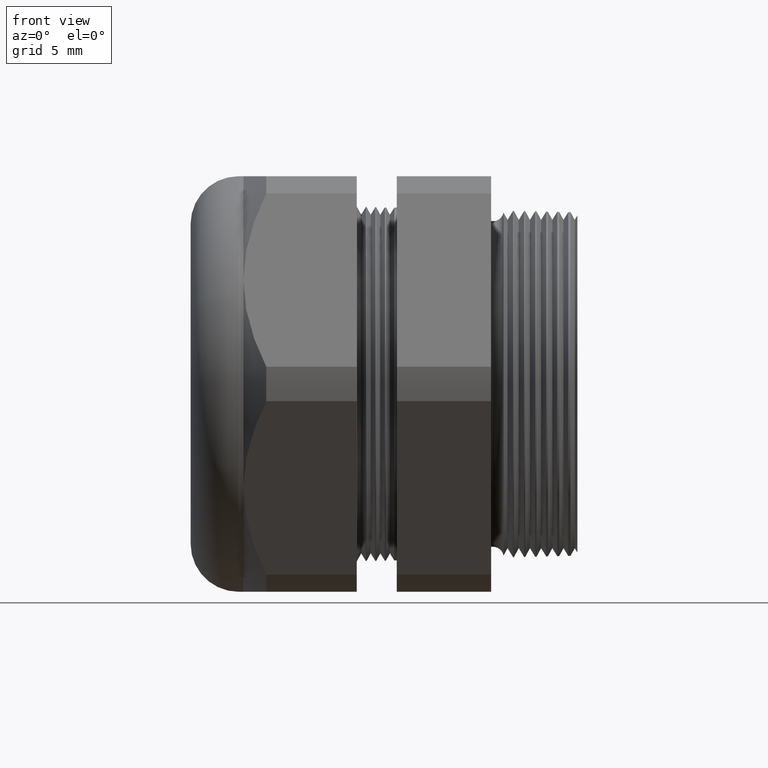
[diagram: clean part render]
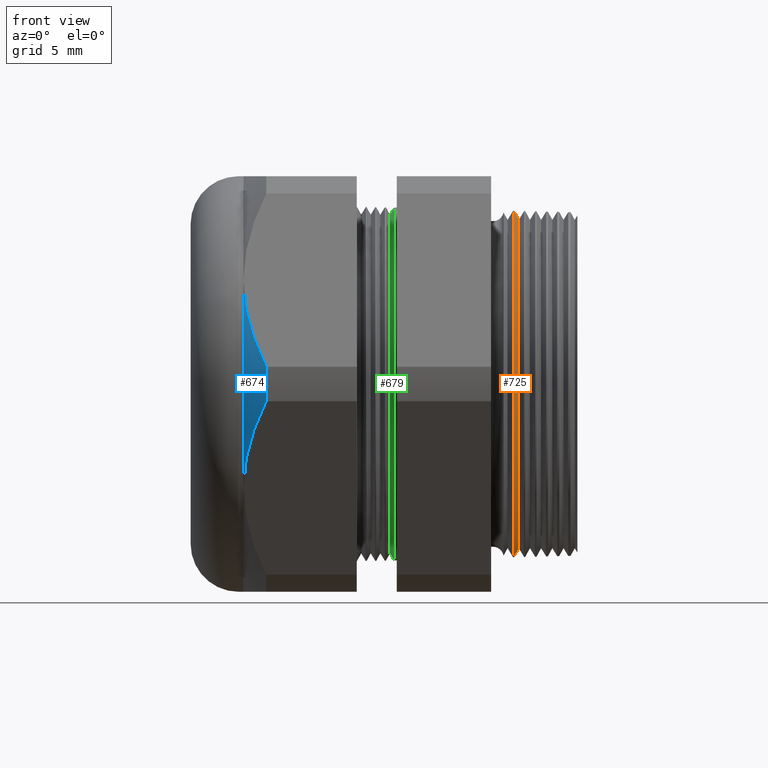
[diagram: same view with three faces highlighted in distinct colors, each labeled with its STEP entity id]
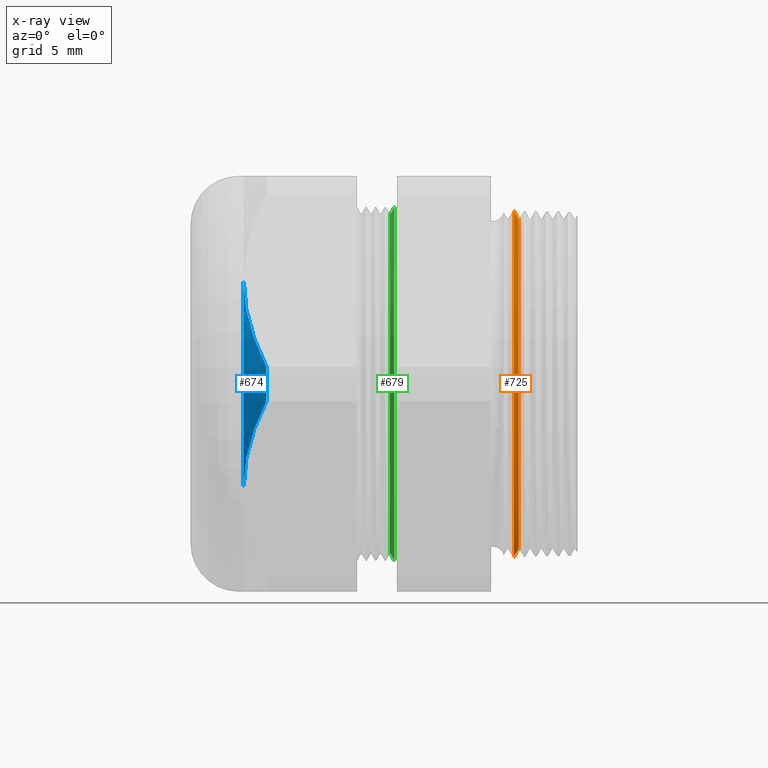
[diagram: x-ray of the same camera — body ghosted, the three highlighted faces saturated]
A machine part, front view with three faces highlighted in distinct colors.
The next image is the same camera in x-ray (body ghosted, the three faces saturated) — at least one of them is partly hidden behind the body in this view.
Their STEP definitions:

[orange] entity #725 — the highlighted conical surface has half-angle 61.5 deg.
#725 = ADVANCED_FACE ( 'NONE', ( #2220 ), #2217, .T. ) ;
#726 = EDGE_LOOP ( 'NONE', ( #727, #728, #730, #731 ) ) ;
#727 = ORIENTED_EDGE ( 'NONE', *, *, #866, .F. ) ;
#728 = ORIENTED_EDGE ( 'NONE', *, *, #729, .F. ) ;
#729 = EDGE_CURVE ( 'NONE', #818, #817, #2211, .T. ) ;
#730 = ORIENTED_EDGE ( 'NONE', *, *, #822, .T. ) ;
#731 = ORIENTED_EDGE ( 'NONE', *, *, #3519, .T. ) ;
#817 = VERTEX_POINT ( 'NONE', #2329 ) ;
#818 = VERTEX_POINT ( 'NONE', #2328 ) ;
#822 = EDGE_CURVE ( 'NONE', #818, #870, #2322, .T. ) ;
#866 = EDGE_CURVE ( 'NONE', #817, #867, #2415, .T. ) ;
#867 = VERTEX_POINT ( 'NONE', #2472 ) ;
#870 = VERTEX_POINT ( 'NONE', #2466 ) ;
#2208 = DIRECTION ( 'NONE',  ( 0.0000000000000000000, 0.0000000000000000000, -1.000000000000000000 ) ) ;
#2209 = DIRECTION ( 'NONE',  ( 1.000000000000000000, 0.0000000000000000000, 0.0000000000000000000 ) ) ;
#2210 = AXIS2_PLACEMENT_3D ( 'NONE', #2216, #2209, #2208 ) ;
#2211 = CIRCLE ( 'NONE', #2210, 0.5135505476127620900 ) ;
#2212 = DIRECTION ( 'NONE',  ( 0.0000000000000000000, 0.0000000000000000000, 1.000000000000000000 ) ) ;
#2213 = DIRECTION ( 'NONE',  ( -1.000000000000000000, 0.0000000000000000000, 0.0000000000000000000 ) ) ;
#2214 = CARTESIAN_POINT ( 'NONE',  ( -0.2399999999999999600, 0.0000000000000000000, 0.0000000000000000000 ) ) ;
#2215 = AXIS2_PLACEMENT_3D ( 'NONE', #2214, #2213, #2212 ) ;
#2216 = CARTESIAN_POINT ( 'NONE',  ( -0.2234707356790751900, 0.0000000000000000000, 0.0000000000000000000 ) ) ;
#2217 = CONICAL_SURFACE ( 'NONE', #2215, 0.5439936654065921100, 1.073377489976501000 ) ;
#2220 = FACE_OUTER_BOUND ( 'NONE', #726, .T. ) ;
#2319 = DIRECTION ( 'NONE',  ( -0.4771587602596187900, 0.0000000000000000000, 0.8788171126619597200 ) ) ;
#2320 = VECTOR ( 'NONE', #2319, 39.37007874015748900 ) ;
#2321 = CARTESIAN_POINT ( 'NONE',  ( -0.2399999999999999600, 0.0000000000000000000, 0.5439936654065921100 ) ) ;
#2322 = LINE ( 'NONE', #2321, #2320 ) ;
#2328 = CARTESIAN_POINT ( 'NONE',  ( -0.2234707356790751900, 0.0000000000000000000, 0.5135505476127620900 ) ) ;
#2329 = CARTESIAN_POINT ( 'NONE',  ( -0.2234707356790751900, 6.464204818586249500E-017, -0.5135505476127620900 ) ) ;
#2412 = DIRECTION ( 'NONE',  ( -0.4771587602596187900, 1.076240564057388000E-016, -0.8788171126619597200 ) ) ;
#2413 = VECTOR ( 'NONE', #2412, 39.37007874015748900 ) ;
#2414 = CARTESIAN_POINT ( 'NONE',  ( -0.2399999999999999600, 6.662001010966193000E-017, -0.5439936654065921100 ) ) ;
#2415 = LINE ( 'NONE', #2414, #2413 ) ;
#2466 = CARTESIAN_POINT ( 'NONE',  ( -0.2389904000387094700, 0.0000000000000000000, 0.5421342135913468400 ) ) ;
#2472 = CARTESIAN_POINT ( 'NONE',  ( -0.2389904000387094700, 6.639539271315464900E-017, -0.5421342135913468400 ) ) ;
#3087 = DIRECTION ( 'NONE',  ( 0.0000000000000000000, 0.0000000000000000000, 1.000000000000000000 ) ) ;
#3088 = DIRECTION ( 'NONE',  ( 1.000000000000000000, 0.0000000000000000000, 0.0000000000000000000 ) ) ;
#3089 = CARTESIAN_POINT ( 'NONE',  ( -0.2389904000387094700, 0.0000000000000000000, 0.0000000000000000000 ) ) ;
#3090 = AXIS2_PLACEMENT_3D ( 'NONE', #3089, #3088, #3087 ) ;
#3091 = CIRCLE ( 'NONE', #3090, 0.5421342135913468400 ) ;
#3519 = EDGE_CURVE ( 'NONE', #870, #867, #3091, .T. ) ;

[blue] entity #674 — the highlighted conical surface has half-angle 45 deg.
#352 = VERTEX_POINT ( 'NONE', #1595 ) ;
#354 = EDGE_CURVE ( 'NONE', #352, #3447, #1584, .T. ) ;
#471 = EDGE_CURVE ( 'NONE', #352, #3419, #1863, .T. ) ;
#654 = ORIENTED_EDGE ( 'NONE', *, *, #471, .T. ) ;
#655 = ORIENTED_EDGE ( 'NONE', *, *, #3420, .F. ) ;
#674 = ADVANCED_FACE ( 'NONE', ( #2153 ), #2152, .T. ) ;
#1584 = B_SPLINE_CURVE_WITH_KNOTS ( 'NONE', 3,
 ( #1642, #1641, #1640, #1639, #1638, #1637 ),
 .UNSPECIFIED., .F., .F.,
 ( 4, 2, 4 ),
 ( 0.008163776578903780100, 0.01224274182034619900, 0.01632170706178861700 ),
 .UNSPECIFIED. ) ;
#1595 = CARTESIAN_POINT ( 'NONE',  ( -1.084645669291338200, -0.5629165124598852800, 0.3249999999999999000 ) ) ;
#1637 = CARTESIAN_POINT ( 'NONE',  ( -1.013145669291338300, -0.7194909755756819800, 0.05380507471562035600 ) ) ;
#1638 = CARTESIAN_POINT ( 'NONE',  ( -1.034794001287756100, -0.6945519286446000300, 0.09700077109259906700 ) ) ;
#1639 = CARTESIAN_POINT ( 'NONE',  ( -1.052917759362547600, -0.6687756690813084800, 0.1416465622853035100 ) ) ;
#1640 = CARTESIAN_POINT ( 'NONE',  ( -1.077805912917037200, -0.6165592345672921100, 0.2320880798536730000 ) ) ;
#1641 = CARTESIAN_POINT ( 'NONE',  ( -1.084645669291338000, -0.5900081318517966800, 0.2780759387538905300 ) ) ;
#1642 = CARTESIAN_POINT ( 'NONE',  ( -1.084645669291338200, -0.5629165124598852800, 0.3249999999999999000 ) ) ;
#1859 = DIRECTION ( 'NONE',  ( 0.0000000000000000000, 0.0000000000000000000, -1.000000000000000000 ) ) ;
#1860 = DIRECTION ( 'NONE',  ( 1.000000000000000000, 0.0000000000000000000, 0.0000000000000000000 ) ) ;
#1861 = CARTESIAN_POINT ( 'NONE',  ( -1.084645669291338200, 0.0000000000000000000, 0.0000000000000000000 ) ) ;
#1862 = AXIS2_PLACEMENT_3D ( 'NONE', #1861, #1860, #1859 ) ;
#1863 = CIRCLE ( 'NONE', #1862, 0.6500000000000000200 ) ;
#2094 = CARTESIAN_POINT ( 'NONE',  ( -1.084645669291338200, 0.0000000000000000000, 0.0000000000000000000 ) ) ;
#2148 = DIRECTION ( 'NONE',  ( 0.0000000000000000000, 0.0000000000000000000, 1.000000000000000000 ) ) ;
#2149 = DIRECTION ( 'NONE',  ( 1.000000000000000000, 0.0000000000000000000, 0.0000000000000000000 ) ) ;
#2150 = AXIS2_PLACEMENT_3D ( 'NONE', #2094, #2149, #2148 ) ;
#2152 = CONICAL_SURFACE ( 'NONE', #2150, 0.6499999999999999100, 0.7853981633974501700 ) ;
#2153 = FACE_OUTER_BOUND ( 'NONE', #3508, .T. ) ;
#2876 = CARTESIAN_POINT ( 'NONE',  ( -1.013145669291338300, -0.7194909755756819800, -0.05380507471562111200 ) ) ;
#2878 = CARTESIAN_POINT ( 'NONE',  ( -1.013145669291338300, -0.7194909755756819800, -0.05380507471562111200 ) ) ;
#2891 = B_SPLINE_CURVE_WITH_KNOTS ( 'NONE', 3,
 ( #2878, #2936, #2935, #2934, #2933, #2932, #2931, #2930, #2929, #2928 ),
 .UNSPECIFIED., .F., .F.,
 ( 4, 2, 2, 2, 4 ),
 ( 2.483249165345060900E-007, 0.004082012451910155400, 0.006122894515406966500, 0.007143335547155371100, 0.008163776578903774900 ),
 .UNSPECIFIED. ) ;
#2893 = CARTESIAN_POINT ( 'NONE',  ( -1.084645669291338200, -0.5629165124598851700, -0.3250000000000002300 ) ) ;
#2928 = CARTESIAN_POINT ( 'NONE',  ( -1.084645669291338200, -0.5629165124598851700, -0.3250000000000002300 ) ) ;
#2929 = CARTESIAN_POINT ( 'NONE',  ( -1.084645669291338000, -0.5696940647084650600, -0.3132609351545070900 ) ) ;
#2930 = CARTESIAN_POINT ( 'NONE',  ( -1.084216759191441600, -0.5765336067434359000, -0.3014145008494349400 ) ) ;
#2931 = CARTESIAN_POINT ( 'NONE',  ( -1.082513212994342000, -0.5901225526399742600, -0.2778777561353257300 ) ) ;
#2932 = CARTESIAN_POINT ( 'NONE',  ( -1.081244147852752100, -0.5968650273424734900, -0.2661994473818493100 ) ) ;
#2933 = CARTESIAN_POINT ( 'NONE',  ( -1.076260635251699000, -0.6169458720203933000, -0.2314184041407928200 ) ) ;
#2934 = CARTESIAN_POINT ( 'NONE',  ( -1.071369503974020300, -0.6301376168794388100, -0.2085696318044403000 ) ) ;
#2935 = CARTESIAN_POINT ( 'NONE',  ( -1.052638942225223100, -0.6692072927766704600, -0.1408989681151863700 ) ) ;
#2936 = CARTESIAN_POINT ( 'NONE',  ( -1.034767232512606000, -0.6945827664818919900, -0.09694735839161448800 ) ) ;
#2950 = DIRECTION ( 'NONE',  ( 0.0000000000000000000, 0.0000000000000000000, -1.000000000000000000 ) ) ;
#2951 = DIRECTION ( 'NONE',  ( 1.000000000000000000, 0.0000000000000000000, 0.0000000000000000000 ) ) ;
#2952 = CARTESIAN_POINT ( 'NONE',  ( -1.013145669291338300, 0.0000000000000000000, 0.0000000000000000000 ) ) ;
#2953 = AXIS2_PLACEMENT_3D ( 'NONE', #2952, #2951, #2950 ) ;
#2954 = CIRCLE ( 'NONE', #2953, 0.7215000000000000300 ) ;
#2955 = CARTESIAN_POINT ( 'NONE',  ( -1.013145669291338300, -0.7194909755756819800, 0.05380507471562035600 ) ) ;
#3405 = VERTEX_POINT ( 'NONE', #2876 ) ;
#3419 = VERTEX_POINT ( 'NONE', #2893 ) ;
#3420 = EDGE_CURVE ( 'NONE', #3405, #3419, #2891, .T. ) ;
#3447 = VERTEX_POINT ( 'NONE', #2955 ) ;
#3448 = EDGE_CURVE ( 'NONE', #3447, #3405, #2954, .T. ) ;
#3507 = ORIENTED_EDGE ( 'NONE', *, *, #3448, .F. ) ;
#3508 = EDGE_LOOP ( 'NONE', ( #3507, #3509, #654, #655 ) ) ;
#3509 = ORIENTED_EDGE ( 'NONE', *, *, #354, .F. ) ;

[green] entity #679 — the highlighted conical surface has half-angle 58.5 deg.
#556 = EDGE_CURVE ( 'NONE', #912, #838, #1991, .T. ) ;
#676 = EDGE_CURVE ( 'NONE', #825, #854, #2147, .T. ) ;
#679 = ADVANCED_FACE ( 'NONE', ( #2143 ), #2142, .T. ) ;
#680 = EDGE_LOOP ( 'NONE', ( #681, #682, #735, #736 ) ) ;
#681 = ORIENTED_EDGE ( 'NONE', *, *, #849, .F. ) ;
#682 = ORIENTED_EDGE ( 'NONE', *, *, #676, .T. ) ;
#735 = ORIENTED_EDGE ( 'NONE', *, *, #847, .T. ) ;
#736 = ORIENTED_EDGE ( 'NONE', *, *, #556, .T. ) ;
#825 = VERTEX_POINT ( 'NONE', #2375 ) ;
#838 = VERTEX_POINT ( 'NONE', #2409 ) ;
#847 = EDGE_CURVE ( 'NONE', #854, #912, #2388, .T. ) ;
#849 = EDGE_CURVE ( 'NONE', #825, #838, #2383, .T. ) ;
#854 = VERTEX_POINT ( 'NONE', #2435 ) ;
#912 = VERTEX_POINT ( 'NONE', #2527 ) ;
#1987 = DIRECTION ( 'NONE',  ( 0.0000000000000000000, 0.0000000000000000000, -1.000000000000000000 ) ) ;
#1988 = DIRECTION ( 'NONE',  ( -1.000000000000000000, 0.0000000000000000000, 0.0000000000000000000 ) ) ;
#1989 = CARTESIAN_POINT ( 'NONE',  ( -0.6128787383115003000, 0.0000000000000000000, 0.0000000000000000000 ) ) ;
#1990 = AXIS2_PLACEMENT_3D ( 'NONE', #1989, #1988, #1987 ) ;
#1991 = CIRCLE ( 'NONE', #1990, 0.5519248242929891700 ) ;
#2137 = DIRECTION ( 'NONE',  ( 0.0000000000000000000, 0.0000000000000000000, -1.000000000000000000 ) ) ;
#2138 = DIRECTION ( 'NONE',  ( 1.000000000000000000, 0.0000000000000000000, 0.0000000000000000000 ) ) ;
#2139 = CARTESIAN_POINT ( 'NONE',  ( -0.6265405736958171700, 0.0000000000000000000, 0.0000000000000000000 ) ) ;
#2140 = AXIS2_PLACEMENT_3D ( 'NONE', #2139, #2138, #2137 ) ;
#2142 = CONICAL_SURFACE ( 'NONE', #2140, 0.5296307351718084800, 1.021017612416700500 ) ;
#2143 = FACE_OUTER_BOUND ( 'NONE', #680, .T. ) ;
#2144 = DIRECTION ( 'NONE',  ( 0.0000000000000000000, 0.0000000000000000000, -1.000000000000000000 ) ) ;
#2145 = DIRECTION ( 'NONE',  ( 1.000000000000000000, 0.0000000000000000000, 0.0000000000000000000 ) ) ;
#2146 = AXIS2_PLACEMENT_3D ( 'NONE', #2151, #2145, #2144 ) ;
#2147 = CIRCLE ( 'NONE', #2146, 0.5296307351718084800 ) ;
#2151 = CARTESIAN_POINT ( 'NONE',  ( -0.6265405736958171700, 0.0000000000000000000, 0.0000000000000000000 ) ) ;
#2375 = CARTESIAN_POINT ( 'NONE',  ( -0.6265405736958171700, 0.0000000000000000000, 0.5296307351718084800 ) ) ;
#2380 = DIRECTION ( 'NONE',  ( 0.5224985647159337000, 1.044183048100723500E-016, 0.8526401643541013900 ) ) ;
#2381 = VECTOR ( 'NONE', #2380, 39.37007874015748900 ) ;
#2382 = CARTESIAN_POINT ( 'NONE',  ( -0.6265405736958171700, 6.486105845582146900E-017, 0.5296307351718084800 ) ) ;
#2383 = LINE ( 'NONE', #2382, #2381 ) ;
#2385 = DIRECTION ( 'NONE',  ( 0.5224985647159337000, 0.0000000000000000000, -0.8526401643541013900 ) ) ;
#2386 = VECTOR ( 'NONE', #2385, 39.37007874015748900 ) ;
#2387 = CARTESIAN_POINT ( 'NONE',  ( -0.6265405736958171700, 0.0000000000000000000, -0.5296307351718084800 ) ) ;
#2388 = LINE ( 'NONE', #2387, #2386 ) ;
#2409 = CARTESIAN_POINT ( 'NONE',  ( -0.6128787383115003000, 0.0000000000000000000, 0.5519248242929891700 ) ) ;
#2435 = CARTESIAN_POINT ( 'NONE',  ( -0.6265405736958171700, 6.626808829408280900E-017, -0.5296307351718084800 ) ) ;
#2527 = CARTESIAN_POINT ( 'NONE',  ( -0.6128787383115003000, 6.759129694403746300E-017, -0.5519248242929891700 ) ) ;